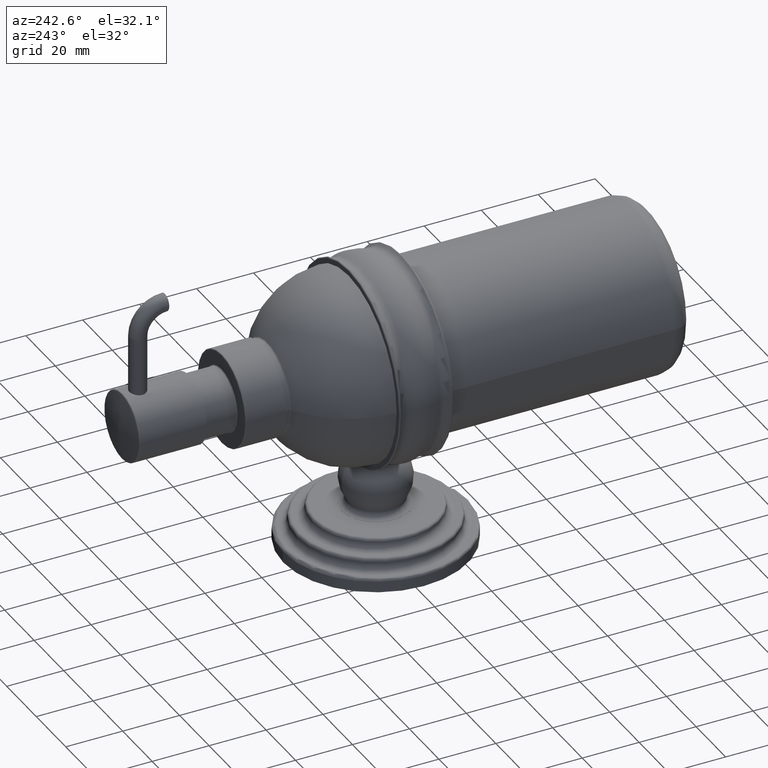
[diagram: clean part render]
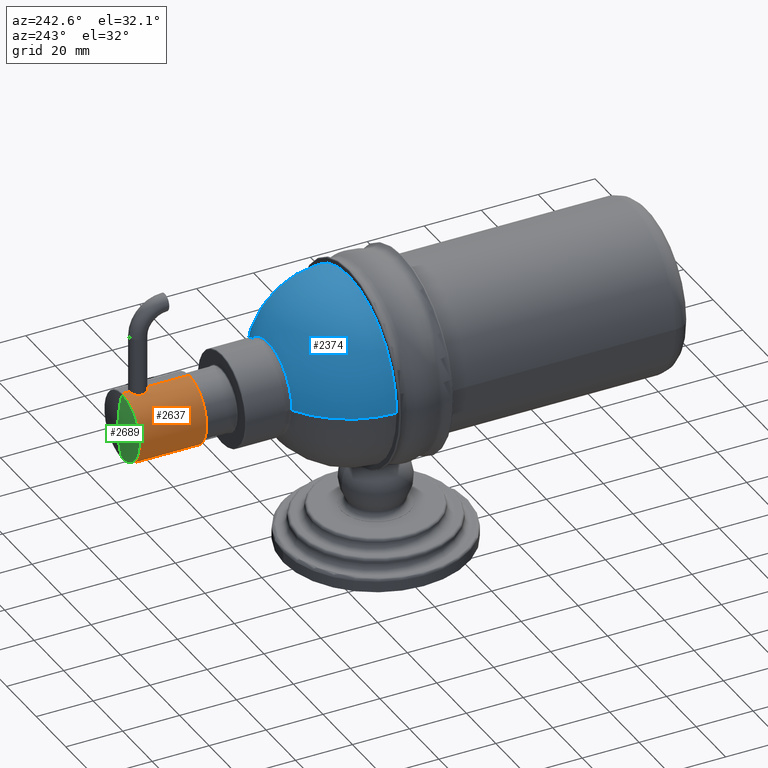
[diagram: same view with three faces highlighted in distinct colors, each labeled with its STEP entity id]
A machine part, auxiliary view with three faces highlighted in distinct colors.
Their STEP definitions:

[orange] entity #2637 — the highlighted cylindrical surface (partial cylindrical patch) has radius 12.0015 mm, axis along (0, -1, 0).
#1068=CARTESIAN_POINT('',(0.E0,2.583E0,2.617E0));
#1069=DIRECTION('',(0.E0,1.E0,0.E0));
#1070=DIRECTION('',(0.E0,0.E0,-1.E0));
#1071=AXIS2_PLACEMENT_3D('',#1068,#1069,#1070);
#1076=CARTESIAN_POINT('',(0.E0,3.173551E0,3.0895E0));
#1102=CARTESIAN_POINT('',(0.E0,3.409771E0,3.0895E0));
#1145=CARTESIAN_POINT('',(0.E0,3.409771E0,3.0895E0));
#1146=CARTESIAN_POINT('',(-5.065580080384E-3,3.409771E0,3.0895E0));
#1147=CARTESIAN_POINT('',(-1.516908248576E-2,3.409127646480E0,
3.089338539920E0));
#1148=CARTESIAN_POINT('',(-3.042117183809E-2,3.406141309151E0,
3.088600662451E0));
#1149=CARTESIAN_POINT('',(-4.516831486274E-2,3.401157746821E0,
3.087409382562E0));
#1150=CARTESIAN_POINT('',(-5.900502089364E-2,3.394361835825E0,
3.085865860294E0));
#1151=CARTESIAN_POINT('',(-7.191525677703E-2,3.385784871224E0,
3.084051421364E0));
#1152=CARTESIAN_POINT('',(-8.373926597521E-2,3.375448037205E0,
3.082066257018E0));
#1153=CARTESIAN_POINT('',(-9.406877570023E-2,3.363644417394E0,
3.080074744994E0));
#1154=CARTESIAN_POINT('',(-1.026310833710E-1,3.350787239106E0,
3.078241445353E0));
#1155=CARTESIAN_POINT('',(-1.094702679300E-1,3.336902981803E0,
3.076657283848E0));
#1156=CARTESIAN_POINT('',(-1.144765275180E-1,3.322101159145E0,
3.075428682508E0));
#1157=CARTESIAN_POINT('',(-1.174655283879E-1,3.306841143842E0,
3.074667164914E0));
#1158=CARTESIAN_POINT('',(-1.184316310274E-1,3.291675592503E0,
3.074416620053E0));
#1159=CARTESIAN_POINT('',(-1.174679436544E-1,3.276496337294E0,
3.074666538819E0));
#1160=CARTESIAN_POINT('',(-1.144808196278E-1,3.261237345559E0,
3.075427616550E0));
#1161=CARTESIAN_POINT('',(-1.094782377782E-1,3.246441126155E0,
3.076655314463E0));
#1162=CARTESIAN_POINT('',(-1.026568090588E-1,3.232579731809E0,
3.078235689942E0));
#1163=CARTESIAN_POINT('',(-9.408749269370E-2,3.219700649269E0,
3.080070981064E0));
#1164=CARTESIAN_POINT('',(-8.375785342617E-2,3.207892409127E0,
3.082062932272E0));
#1165=CARTESIAN_POINT('',(-7.193601762885E-2,3.197554058893E0,
3.084048047134E0));
#1166=CARTESIAN_POINT('',(-5.905039973651E-2,3.188986417895E0,
3.085860097482E0));
#1167=CARTESIAN_POINT('',(-4.519502303457E-2,3.182173960127E0,
3.087407054380E0));
#1168=CARTESIAN_POINT('',(-3.043367026751E-2,3.177183536848E0,
3.088599968991E0));
#1169=CARTESIAN_POINT('',(-1.517177042987E-2,3.174194366973E0,
3.089338533039E0));
#1170=CARTESIAN_POINT('',(-5.065851090868E-3,3.173551E0,3.0895E0));
#1171=CARTESIAN_POINT('',(0.E0,3.173551E0,3.0895E0));
#1176=DIRECTION('',(0.E0,-1.E0,0.E0));
#1177=VECTOR('',#1176,5.90551E-1);
#1178=CARTESIAN_POINT('',(0.E0,3.173551E0,3.0895E0));
#1179=LINE('',#1178,#1177);
#1183=DIRECTION('',(0.E0,-1.E0,0.E0));
#1184=VECTOR('',#1183,9.158106322967E-1);
#1185=CARTESIAN_POINT('',(0.E0,3.498810632297E0,2.1445E0));
#1186=LINE('',#1185,#1184);
#1190=CARTESIAN_POINT('',(0.E0,3.498810632297E0,2.617E0));
#1191=DIRECTION('',(0.E0,-1.E0,0.E0));
#1192=DIRECTION('',(0.E0,0.E0,1.E0));
#1193=AXIS2_PLACEMENT_3D('',#1190,#1191,#1192);
#1198=DIRECTION('',(6.228727696915E-14,-1.E0,0.E0));
#1199=VECTOR('',#1198,8.903963229673E-2);
#1200=CARTESIAN_POINT('',(0.E0,3.498810632297E0,3.0895E0));
#1201=LINE('',#1200,#1199);
#1632=CARTESIAN_POINT('',(0.E0,2.583E0,2.1445E0));
#1633=CARTESIAN_POINT('',(0.E0,2.583E0,3.0895E0));
#1634=VERTEX_POINT('',#1632);
#1635=VERTEX_POINT('',#1633);
#1636=CARTESIAN_POINT('',(0.E0,3.498810632297E0,2.1445E0));
#1637=CARTESIAN_POINT('',(0.E0,3.498810632297E0,3.0895E0));
#1638=VERTEX_POINT('',#1636);
#1639=VERTEX_POINT('',#1637);
#1658=VERTEX_POINT('',#1076);
#1659=VERTEX_POINT('',#1102);
#2623=CARTESIAN_POINT('',(0.E0,3.6164646E0,2.617E0));
#2624=DIRECTION('',(0.E0,-1.E0,0.E0));
#2625=DIRECTION('',(0.E0,0.E0,-1.E0));
#2626=AXIS2_PLACEMENT_3D('',#2623,#2624,#2625);
#2627=CYLINDRICAL_SURFACE('',#2626,4.725E-1);
#2628=ORIENTED_EDGE('',*,*,#2614,.T.);
#2629=ORIENTED_EDGE('',*,*,#2589,.T.);
#2630=ORIENTED_EDGE('',*,*,#2565,.F.);
#2631=ORIENTED_EDGE('',*,*,#2586,.F.);
#2633=ORIENTED_EDGE('',*,*,#2632,.F.);
#2634=ORIENTED_EDGE('',*,*,#2582,.T.);
#2635=EDGE_LOOP('',(#2628,#2629,#2630,#2631,#2633,#2634));
#2636=FACE_OUTER_BOUND('',#2635,.F.);
#1072=CIRCLE('',#1071,4.725E-1);
#1172=B_SPLINE_CURVE_WITH_KNOTS('',3,(#1145,#1146,#1147,#1148,#1149,#1150,#1151,
#1152,#1153,#1154,#1155,#1156,#1157,#1158,#1159,#1160,#1161,#1162,#1163,#1164,
#1165,#1166,#1167,#1168,#1169,#1170,#1171),.UNSPECIFIED.,.F.,.F.,(4,1,1,1,1,1,1,
1,1,1,1,1,1,1,1,1,1,1,1,1,1,1,1,1,4),(0.E0,4.166666666667E-2,8.333333333333E-2,
1.25E-1,1.666666666667E-1,2.083333333333E-1,2.5E-1,2.916666666667E-1,
3.333333333333E-1,3.75E-1,4.166666666667E-1,4.583333333333E-1,5.E-1,
5.416666666667E-1,5.833333333333E-1,6.25E-1,6.666666666667E-1,7.083333333333E-1,
7.5E-1,7.916666666667E-1,8.333333333333E-1,8.75E-1,9.166666666667E-1,
9.583333333333E-1,1.E0),.UNSPECIFIED.);
#1194=CIRCLE('',#1193,4.725E-1);
#2565=EDGE_CURVE('',#1634,#1635,#1072,.T.);
#2582=EDGE_CURVE('',#1639,#1659,#1201,.T.);
#2586=EDGE_CURVE('',#1638,#1634,#1186,.T.);
#2589=EDGE_CURVE('',#1658,#1635,#1179,.T.);
#2614=EDGE_CURVE('',#1659,#1658,#1172,.T.);
#2632=EDGE_CURVE('',#1639,#1638,#1194,.T.);
#2637=ADVANCED_FACE('',(#2636),#2627,.T.);

[blue] entity #2374 — the highlighted spherical surface has radius 32.4866 mm.
#811=CARTESIAN_POINT('',(0.E0,3.74E-1,2.617E0));
#812=DIRECTION('',(0.E0,1.E0,0.E0));
#813=DIRECTION('',(-1.E0,0.E0,0.E0));
#814=AXIS2_PLACEMENT_3D('',#811,#812,#813);
#865=CARTESIAN_POINT('',(0.E0,3.74E-1,2.617E0));
#866=DIRECTION('',(0.E0,0.E0,-1.E0));
#867=DIRECTION('',(-1.E0,0.E0,0.E0));
#868=AXIS2_PLACEMENT_3D('',#865,#866,#867);
#873=CARTESIAN_POINT('',(0.E0,1.486954006707E0,2.617E0));
#874=DIRECTION('',(0.E0,-1.E0,0.E0));
#875=DIRECTION('',(1.E0,0.E0,0.E0));
#876=AXIS2_PLACEMENT_3D('',#873,#874,#875);
#881=CARTESIAN_POINT('',(0.E0,3.74E-1,2.617E0));
#882=DIRECTION('',(0.E0,0.E0,1.E0));
#883=DIRECTION('',(1.E0,0.E0,0.E0));
#884=AXIS2_PLACEMENT_3D('',#881,#882,#883);
#1596=CARTESIAN_POINT('',(-6.302177234530E-1,1.486954006707E0,2.617E0));
#1597=CARTESIAN_POINT('',(6.302177234530E-1,1.486954006707E0,2.617E0));
#1598=VERTEX_POINT('',#1596);
#1599=VERTEX_POINT('',#1597);
#1604=CARTESIAN_POINT('',(1.279E0,3.74E-1,2.617E0));
#1605=CARTESIAN_POINT('',(-1.279E0,3.74E-1,2.617E0));
#1606=VERTEX_POINT('',#1604);
#1607=VERTEX_POINT('',#1605);
#2362=CARTESIAN_POINT('',(0.E0,3.74E-1,2.617E0));
#2363=DIRECTION('',(0.E0,1.E0,0.E0));
#2364=DIRECTION('',(1.E0,0.E0,0.E0));
#2365=AXIS2_PLACEMENT_3D('',#2362,#2363,#2364);
#2366=SPHERICAL_SURFACE('',#2365,1.279E0);
#2367=ORIENTED_EDGE('',*,*,#2289,.F.);
#2368=ORIENTED_EDGE('',*,*,#2350,.T.);
#2370=ORIENTED_EDGE('',*,*,#2369,.F.);
#2371=ORIENTED_EDGE('',*,*,#2346,.F.);
#2372=EDGE_LOOP('',(#2367,#2368,#2370,#2371));
#2373=FACE_OUTER_BOUND('',#2372,.F.);
#815=CIRCLE('',#814,1.279E0);
#869=CIRCLE('',#868,1.279E0);
#877=CIRCLE('',#876,6.302177234530E-1);
#885=CIRCLE('',#884,1.279E0);
#2289=EDGE_CURVE('',#1607,#1606,#815,.T.);
#2346=EDGE_CURVE('',#1606,#1599,#885,.T.);
#2350=EDGE_CURVE('',#1607,#1598,#869,.T.);
#2369=EDGE_CURVE('',#1599,#1598,#877,.T.);
#2374=ADVANCED_FACE('',(#2373),#2366,.T.);

[green] entity #2689 — the highlighted spherical surface has radius 50.8 mm.
#1229=CARTESIAN_POINT('',(0.E0,3.513406793246E0,2.617E0));
#1230=DIRECTION('',(0.E0,-1.E0,0.E0));
#1231=DIRECTION('',(0.E0,0.E0,1.E0));
#1232=AXIS2_PLACEMENT_3D('',#1229,#1230,#1231);
#1237=CARTESIAN_POINT('',(0.E0,1.567252E0,2.617E0));
#1238=DIRECTION('',(-1.E0,0.E0,0.E0));
#1239=DIRECTION('',(0.E0,1.E0,0.E0));
#1240=AXIS2_PLACEMENT_3D('',#1237,#1238,#1239);
#1245=CARTESIAN_POINT('',(0.E0,1.567252E0,2.617E0));
#1246=DIRECTION('',(1.E0,0.E0,0.E0));
#1247=DIRECTION('',(0.E0,1.E0,0.E0));
#1248=AXIS2_PLACEMENT_3D('',#1245,#1246,#1247);
#1640=CARTESIAN_POINT('',(0.E0,3.513406793246E0,2.156042821159E0));
#1641=CARTESIAN_POINT('',(0.E0,3.513406793246E0,3.077957178841E0));
#1642=VERTEX_POINT('',#1640);
#1643=VERTEX_POINT('',#1641);
#1644=CARTESIAN_POINT('',(0.E0,3.567252E0,2.617E0));
#1645=VERTEX_POINT('',#1644);
#2679=CARTESIAN_POINT('',(0.E0,1.567252E0,2.617E0));
#2680=DIRECTION('',(0.E0,-1.E0,0.E0));
#2681=DIRECTION('',(0.E0,0.E0,-1.E0));
#2682=AXIS2_PLACEMENT_3D('',#2679,#2680,#2681);
#2683=SPHERICAL_SURFACE('',#2682,2.E0);
#2684=ORIENTED_EDGE('',*,*,#2646,.T.);
#2685=ORIENTED_EDGE('',*,*,#2674,.F.);
#2686=ORIENTED_EDGE('',*,*,#2672,.T.);
#2687=EDGE_LOOP('',(#2684,#2685,#2686));
#2688=FACE_OUTER_BOUND('',#2687,.F.);
#1233=CIRCLE('',#1232,4.609571788413E-1);
#1241=CIRCLE('',#1240,2.E0);
#1249=CIRCLE('',#1248,2.E0);
#2646=EDGE_CURVE('',#1643,#1642,#1233,.T.);
#2672=EDGE_CURVE('',#1645,#1643,#1249,.T.);
#2674=EDGE_CURVE('',#1645,#1642,#1241,.T.);
#2689=ADVANCED_FACE('',(#2688),#2683,.T.);